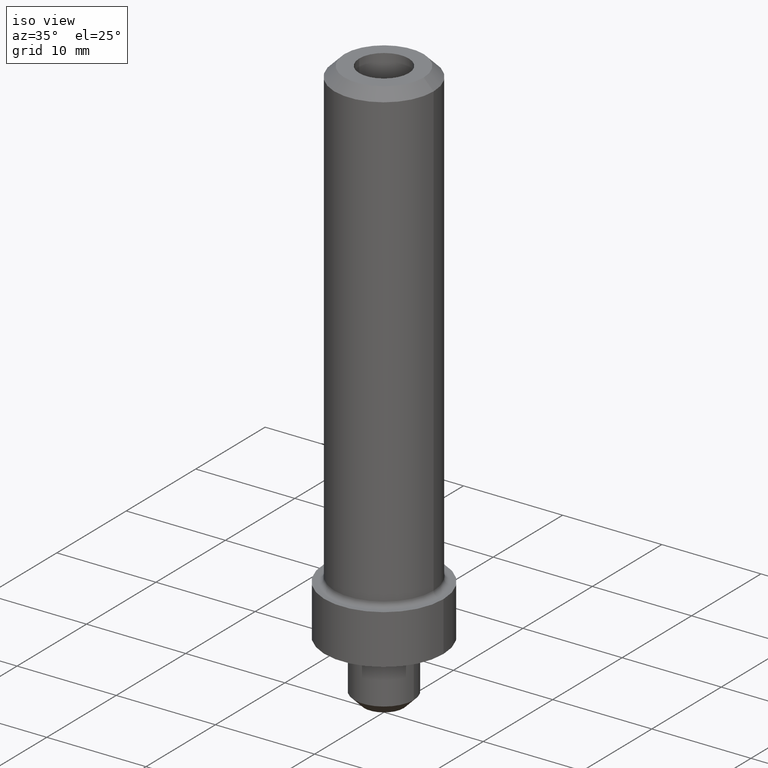
[diagram: clean part render]
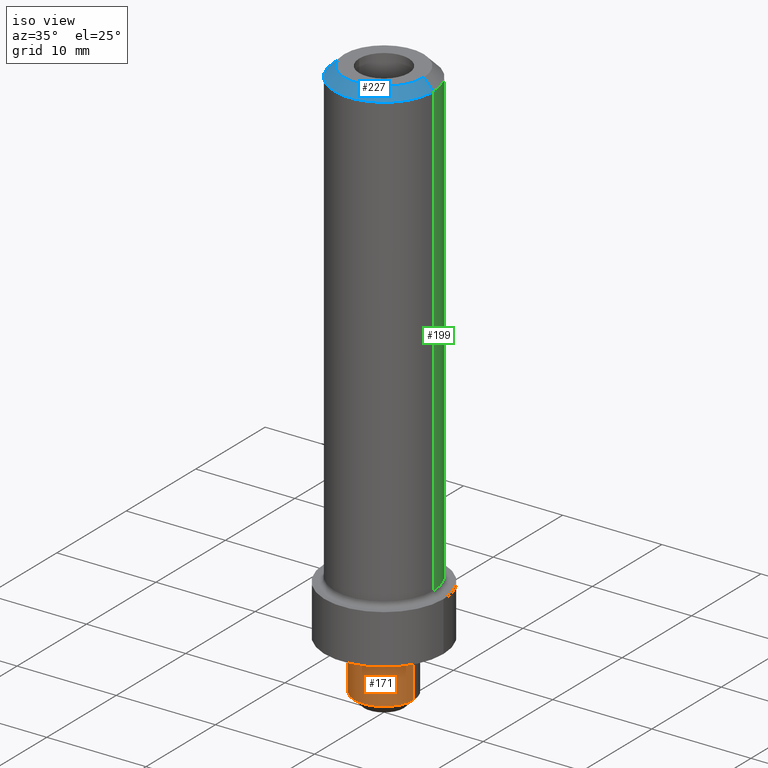
[diagram: same view with three faces highlighted in distinct colors, each labeled with its STEP entity id]
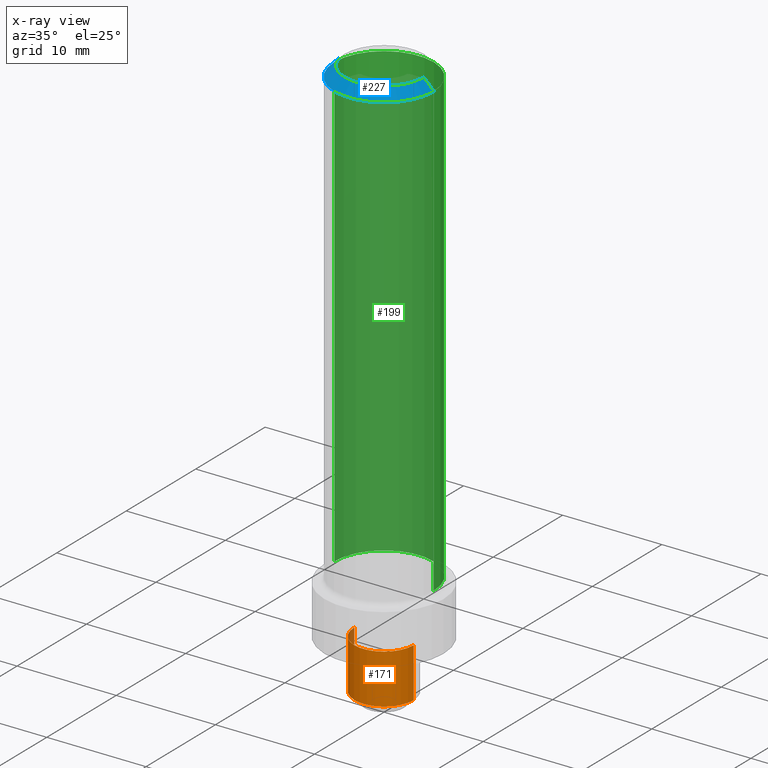
[diagram: x-ray of the same camera — body ghosted, the three highlighted faces saturated]
A machine part, iso view with three faces highlighted in distinct colors.
The next image is the same camera in x-ray (body ghosted, the three faces saturated) — at least one of them is partly hidden behind the body in this view.
Their STEP definitions:

[orange] entity #171 — the highlighted cylindrical surface (edge-blend (fillet) strip) has radius 3 mm, axis along (-0, -0, 1).
#155=VERTEX_POINT('NONE',#362);
#157=EDGE_CURVE('NONE',#291,#155,#364,.T.);
#171=ADVANCED_FACE('NONE',(#384),#385,.T.);
#175=EDGE_CURVE('NONE',#191,#155,#389,.T.);
#181=VERTEX_POINT('NONE',#396);
#191=VERTEX_POINT('NONE',#406);
#203=EDGE_CURVE('NONE',#181,#291,#419,.T.);
#261=EDGE_CURVE('NONE',#181,#191,#487,.T.);
#291=VERTEX_POINT('NONE',#519);
#362=CARTESIAN_POINT('',(3.0,0.0,0.0));
#364=LINE('',#597,#598);
#384=FACE_OUTER_BOUND('',#619,.T.);
#385=CYLINDRICAL_SURFACE('',#620,3.0);
#389=CIRCLE('',#625,3.0);
#396=CARTESIAN_POINT('',(-3.0,3.67381906146713E-016,-5.00000000000001));
#406=CARTESIAN_POINT('',(-3.0,3.67381906146713E-016,0.0));
#419=CIRCLE('',#663,3.0);
#487=LINE('',#746,#747);
#519=CARTESIAN_POINT('',(3.0,0.0,-5.00000000000001));
#597=CARTESIAN_POINT('',(3.0,0.0,44.3839792060492));
#598=VECTOR('',#872,1000.0);
#619=EDGE_LOOP('',(#909,#910,#911,#912));
#620=AXIS2_PLACEMENT_3D('',#913,#914,#915);
#625=AXIS2_PLACEMENT_3D('',#916,#917,#918);
#663=AXIS2_PLACEMENT_3D('',#946,#947,#948);
#746=CARTESIAN_POINT('',(-3.0,3.67381906146713E-016,44.3839792060492));
#747=VECTOR('',#1042,1000.0);
#872=DIRECTION('',(-0.0,0.0,1.0));
#909=ORIENTED_EDGE('',*,*,#261,.F.);
#910=ORIENTED_EDGE('',*,*,#203,.T.);
#911=ORIENTED_EDGE('',*,*,#157,.T.);
#912=ORIENTED_EDGE('',*,*,#175,.F.);
#913=CARTESIAN_POINT('',(0.0,0.0,44.3839792060492));
#914=DIRECTION('',(-0.0,-0.0,1.0));
#915=DIRECTION('',(1.0,0.0,0.0));
#916=CARTESIAN_POINT('',(0.0,0.0,0.0));
#917=DIRECTION('',(0.0,0.0,1.0));
#918=DIRECTION('',(1.0,0.0,0.0));
#946=CARTESIAN_POINT('',(0.0,0.0,-5.00000000000001));
#947=DIRECTION('',(0.0,0.0,1.0));
#948=DIRECTION('',(1.0,0.0,0.0));
#1042=DIRECTION('',(-0.0,0.0,1.0));

[blue] entity #227 — the highlighted conical surface has half-angle 45 deg.
#143=EDGE_CURVE('NONE',#269,#249,#349,.T.);
#189=EDGE_CURVE('NONE',#283,#255,#404,.T.);
#221=EDGE_CURVE('NONE',#283,#249,#442,.T.);
#227=ADVANCED_FACE('NONE',(#449),#450,.T.);
#249=VERTEX_POINT('NONE',#475);
#255=VERTEX_POINT('NONE',#481);
#263=EDGE_CURVE('NONE',#255,#269,#489,.T.);
#269=VERTEX_POINT('NONE',#495);
#283=VERTEX_POINT('NONE',#510);
#349=CIRCLE('',#578,5.0);
#404=CIRCLE('',#645,4.0);
#442=LINE('',#688,#689);
#449=FACE_OUTER_BOUND('',#698,.T.);
#450=CONICAL_SURFACE('',#699,4.0,0.785398163397446);
#475=CARTESIAN_POINT('',(-5.0,6.12303176911188E-016,51.0));
#481=CARTESIAN_POINT('',(4.0,5.51072859220069E-016,52.0));
#489=LINE('',#750,#751);
#495=CARTESIAN_POINT('',(5.0,0.0,51.0));
#510=CARTESIAN_POINT('',(-4.0,0.0,52.0));
#578=AXIS2_PLACEMENT_3D('',#852,#853,#854);
#645=AXIS2_PLACEMENT_3D('',#929,#930,#931);
#688=CARTESIAN_POINT('',(-4.0,0.0,52.0));
#689=VECTOR('',#988,1000.0);
#698=EDGE_LOOP('',(#999,#1000,#1001,#1002));
#699=AXIS2_PLACEMENT_3D('',#1003,#1004,#1005);
#750=CARTESIAN_POINT('',(4.0,4.8984254152895E-016,52.0));
#751=VECTOR('',#1043,1000.0);
#852=CARTESIAN_POINT('',(0.0,0.0,51.0));
#853=DIRECTION('',(0.0,0.0,-1.0));
#854=DIRECTION('',(-1.0,0.0,0.0));
#929=CARTESIAN_POINT('',(0.0,0.0,52.0));
#930=DIRECTION('',(0.0,0.0,1.0));
#931=DIRECTION('',(-1.0,0.0,0.0));
#988=DIRECTION('',(-0.707106781186546,0.0,-0.707106781186549));
#999=ORIENTED_EDGE('',*,*,#263,.F.);
#1000=ORIENTED_EDGE('',*,*,#189,.F.);
#1001=ORIENTED_EDGE('',*,*,#221,.T.);
#1002=ORIENTED_EDGE('',*,*,#143,.F.);
#1003=CARTESIAN_POINT('',(0.0,0.0,52.0));
#1004=DIRECTION('',(-0.0,-0.0,-1.0));
#1005=DIRECTION('',(-1.0,0.0,0.0));
#1043=DIRECTION('',(0.707106781186546,8.65927457071933E-017,-0.707106781186549));

[green] entity #199 — the highlighted cylindrical surface (partial cylindrical patch) has radius 5 mm, axis along (-0, -0, 1).
#125=VERTEX_POINT('NONE',#327);
#131=EDGE_CURVE('NONE',#249,#269,#335,.T.);
#199=ADVANCED_FACE('NONE',(#414),#415,.T.);
#229=EDGE_CURVE('NONE',#125,#249,#452,.T.);
#237=EDGE_CURVE('NONE',#289,#125,#461,.T.);
#249=VERTEX_POINT('NONE',#475);
#269=VERTEX_POINT('NONE',#495);
#277=EDGE_CURVE('NONE',#289,#269,#504,.T.);
#289=VERTEX_POINT('NONE',#517);
#327=CARTESIAN_POINT('',(-5.0,6.12303176911189E-016,5.5));
#335=CIRCLE('',#561,5.0);
#414=FACE_OUTER_BOUND('',#656,.T.);
#415=CYLINDRICAL_SURFACE('',#657,5.0);
#452=LINE('',#702,#703);
#461=CIRCLE('',#713,5.0);
#475=CARTESIAN_POINT('',(-5.0,6.12303176911188E-016,51.0));
#495=CARTESIAN_POINT('',(5.0,0.0,51.0));
#504=LINE('',#771,#772);
#517=CARTESIAN_POINT('',(5.0,0.0,5.5));
#561=AXIS2_PLACEMENT_3D('',#827,#828,#829);
#656=EDGE_LOOP('',(#936,#937,#938,#939));
#657=AXIS2_PLACEMENT_3D('',#940,#941,#942);
#702=CARTESIAN_POINT('',(-5.0,6.12303176911188E-016,44.3839792060492));
#703=VECTOR('',#1006,1000.0);
#713=AXIS2_PLACEMENT_3D('',#1015,#1016,#1017);
#771=CARTESIAN_POINT('',(5.0,0.0,44.3839792060492));
#772=VECTOR('',#1059,1000.0);
#827=CARTESIAN_POINT('',(0.0,0.0,51.0));
#828=DIRECTION('',(0.0,0.0,-1.0));
#829=DIRECTION('',(-1.0,0.0,0.0));
#936=ORIENTED_EDGE('',*,*,#237,.T.);
#937=ORIENTED_EDGE('',*,*,#229,.T.);
#938=ORIENTED_EDGE('',*,*,#131,.T.);
#939=ORIENTED_EDGE('',*,*,#277,.F.);
#940=CARTESIAN_POINT('',(0.0,0.0,44.3839792060492));
#941=DIRECTION('',(-0.0,-0.0,1.0));
#942=DIRECTION('',(1.0,0.0,0.0));
#1006=DIRECTION('',(-0.0,0.0,1.0));
#1015=CARTESIAN_POINT('',(0.0,0.0,5.5));
#1016=DIRECTION('',(0.0,0.0,1.0));
#1017=DIRECTION('',(1.0,0.0,0.0));
#1059=DIRECTION('',(-0.0,0.0,1.0));